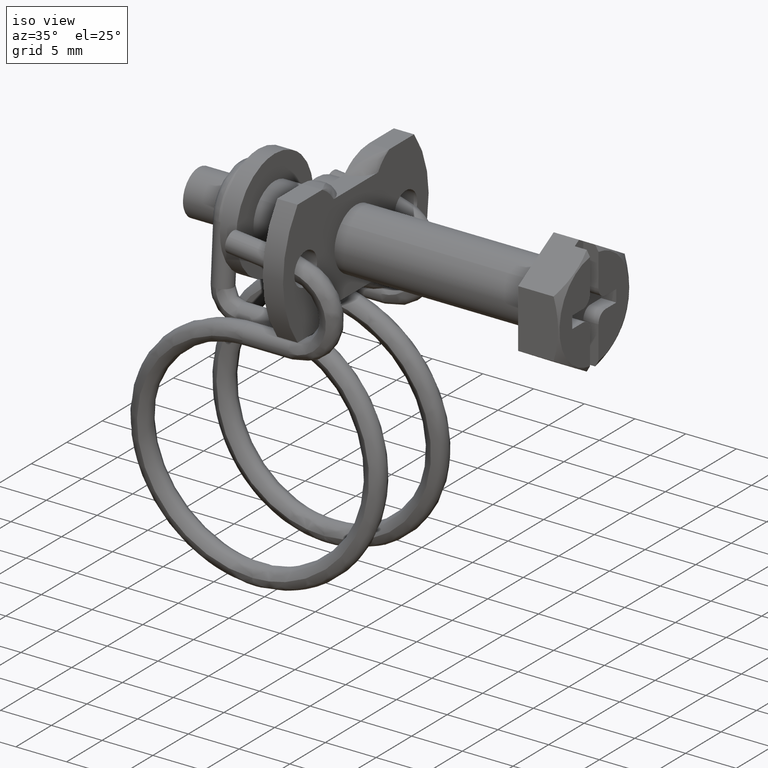
[diagram: clean part render]
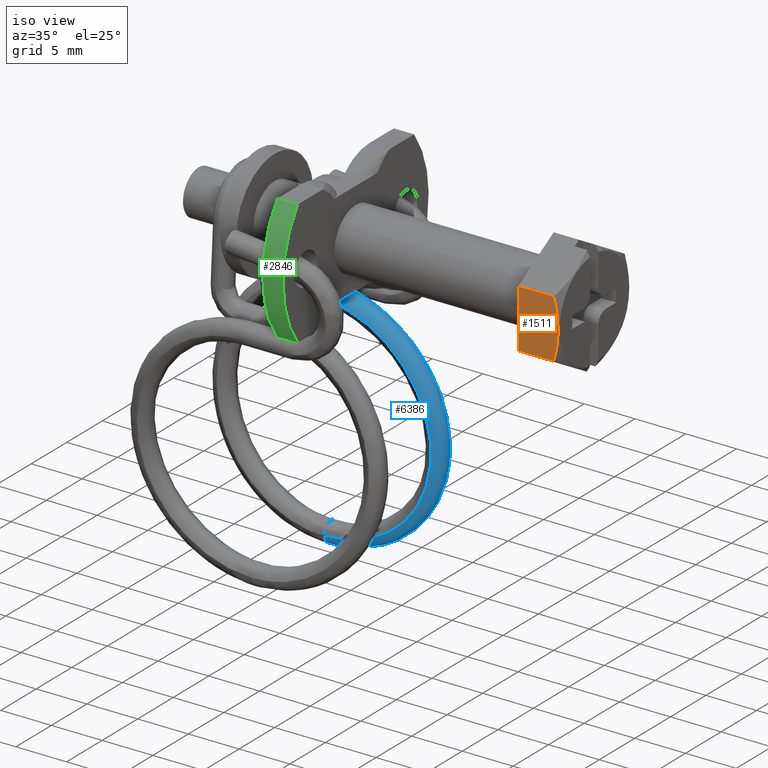
[diagram: same view with three faces highlighted in distinct colors, each labeled with its STEP entity id]
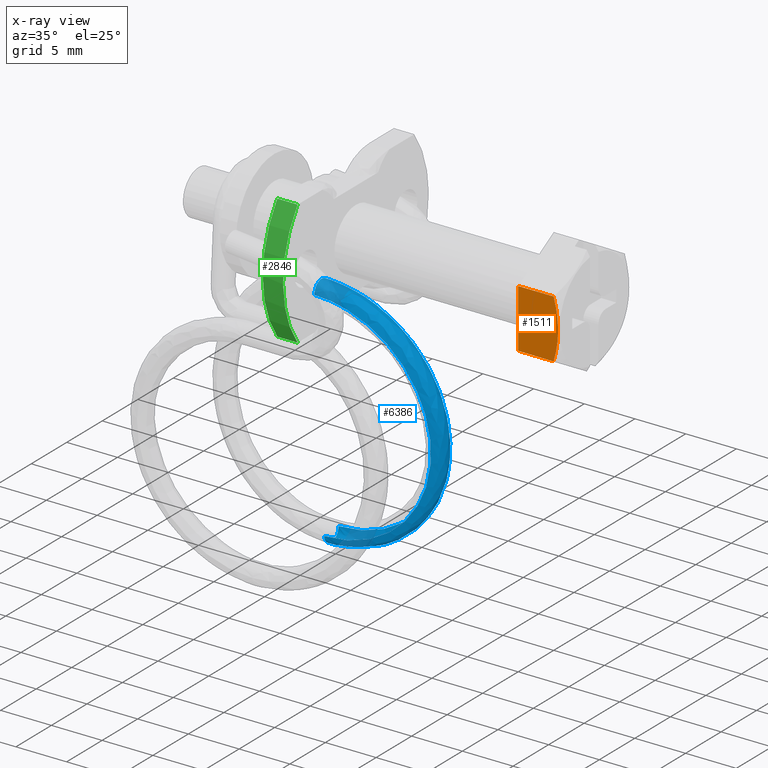
[diagram: x-ray of the same camera — body ghosted, the three highlighted faces saturated]
A machine part, iso view with three faces highlighted in distinct colors.
The next image is the same camera in x-ray (body ghosted, the three faces saturated) — at least one of them is partly hidden behind the body in this view.
Their STEP definitions:

[orange] entity #1511 — the highlighted face is a freeform B-spline surface patch.
#1353=CARTESIAN_POINT('',(3.495682214077680,-4.999999666913359,2.886750192307645));
#1354=VERTEX_POINT('',#1353);
#1372=CARTESIAN_POINT('',(3.495681525698545,-5.0,-2.886752000000000));
#1373=VERTEX_POINT('',#1372);
#1374=CARTESIAN_POINT('',(3.495681525698561,-5.0,-2.886752000000006));
#1375=CARTESIAN_POINT('',(3.529595978997481,-4.999999999999999,-2.769268907514330));
#1376=CARTESIAN_POINT('',(3.562116847349381,-5.0,-2.651240039271775));
#1377=CARTESIAN_POINT('',(3.624020580807399,-5.0,-2.413953352875707));
#1378=CARTESIAN_POINT('',(3.653429100294320,-5.0,-2.294582414753852));
#1379=CARTESIAN_POINT('',(3.736196829382978,-5.0,-1.935162553025155));
#1380=CARTESIAN_POINT('',(3.783840143937273,-5.0,-1.694933598684731));
#1381=CARTESIAN_POINT('',(3.861528393744251,-5.000000000000001,-1.213037692976769));
#1382=CARTESIAN_POINT('',(3.891556436807131,-4.999999999999999,-0.971369361316291));
#1383=CARTESIAN_POINT('',(3.931945220874010,-4.999999999999999,-0.486425645356718));
#1384=CARTESIAN_POINT('',(3.942291136280538,-5.0,-0.243149049629871));
#1385=CARTESIAN_POINT('',(3.942236157695507,-5.0,0.245099403059260));
#1386=CARTESIAN_POINT('',(3.931828426161373,-5.000000000000001,0.490100652901158));
#1387=CARTESIAN_POINT('',(3.890504368289995,-5.000000000000001,0.981663246211075));
#1388=CARTESIAN_POINT('',(3.859912665961563,-5.000000000000001,1.224798511220037));
#1389=CARTESIAN_POINT('',(3.742559517215290,-5.0,1.947388341082182));
#1390=CARTESIAN_POINT('',(3.630399590353678,-4.999999999999999,2.420074789769169));
#1391=CARTESIAN_POINT('',(3.495682059430621,-5.0,2.886750151097730));
#1392=B_SPLINE_CURVE_WITH_KNOTS('',3,(#1374,#1375,#1376,#1377,#1378,#1379,#1380,#1381,#1382,#1383,#1384,#1385,#1386,#1387,#1388,#1389,#1390,#1391),.UNSPECIFIED.,.F.,.U.,(4,2,2,2,2,2,2,2,4),(0.0,0.062500000000000,0.125000000000000,0.250000000000000,0.375000000000000,0.500000000000000,0.625000000000000,0.750000000000000,1.0),.UNSPECIFIED.);
#1393=EDGE_CURVE('',#1373,#1354,#1392,.T.);
#1444=CARTESIAN_POINT('',(0.0,-5.0,-2.886752000000000));
#1445=VERTEX_POINT('',#1444);
#1451=CARTESIAN_POINT('',(0.0,-5.0,2.886751000000000));
#1452=VERTEX_POINT('',#1451);
#1453=CARTESIAN_POINT('',(0.0,-5.0,-2.886752000000000));
#1454=CARTESIAN_POINT('',(0.0,-5.0,2.886751000000000));
#1455=QUASI_UNIFORM_CURVE('',1,(#1453,#1454),.UNSPECIFIED.,.F.,.U.);
#1456=EDGE_CURVE('',#1445,#1452,#1455,.T.);
#1488=CARTESIAN_POINT('',(0.0,-5.0,2.886751000000000));
#1489=CARTESIAN_POINT('',(3.495682214077680,-4.999999666913359,2.886750192307645));
#1490=QUASI_UNIFORM_CURVE('',1,(#1488,#1489),.UNSPECIFIED.,.F.,.U.);
#1491=EDGE_CURVE('',#1452,#1354,#1490,.T.);
#1496=CARTESIAN_POINT('',(-0.196916064255165,-5.0,-3.175138463659831));
#1497=CARTESIAN_POINT('',(-0.196916064255165,-5.0,3.175137618517248));
#1498=CARTESIAN_POINT('',(4.139179871617277,-5.0,-3.175138463659831));
#1499=CARTESIAN_POINT('',(4.139179871617277,-5.0,3.175137618517248));
#1500=B_SPLINE_SURFACE_WITH_KNOTS('',1,1,((#1496,#1498),(#1497,#1499)),.UNSPECIFIED.,.F.,.F.,.U.,(2,2),(2,2),(0.0,6.350276082177080),(0.0,4.336095935872442),.UNSPECIFIED.);
#1501=CARTESIAN_POINT('',(0.0,-5.0,-2.886752000000000));
#1502=CARTESIAN_POINT('',(3.495681525698545,-5.0,-2.886752000000000));
#1503=QUASI_UNIFORM_CURVE('',1,(#1501,#1502),.UNSPECIFIED.,.F.,.U.);
#1504=EDGE_CURVE('',#1445,#1373,#1503,.T.);
#1505=ORIENTED_EDGE('',*,*,#1504,.T.);
#1506=ORIENTED_EDGE('',*,*,#1393,.T.);
#1507=ORIENTED_EDGE('',*,*,#1491,.F.);
#1508=ORIENTED_EDGE('',*,*,#1456,.F.);
#1509=EDGE_LOOP('',(#1505,#1506,#1507,#1508));
#1510=FACE_OUTER_BOUND('',#1509,.T.);
#1511=ADVANCED_FACE('',(#1510),#1500,.F.);

[blue] entity #6386 — the highlighted face is a freeform B-spline surface patch.
#5854=CARTESIAN_POINT('',(-25.454066662369350,3.556007760915047,-6.594689916513559));
#5855=VERTEX_POINT('',#5854);
#5861=CARTESIAN_POINT('',(-25.454066662369350,4.677078109301160,-7.524859682570870));
#5862=VERTEX_POINT('',#5861);
#5863=CARTESIAN_POINT('',(-25.454066662369350,3.556007760915047,-6.594689916513559));
#5864=CARTESIAN_POINT('',(-25.454066662369350,3.576203292679349,-6.592138758728631));
#5865=CARTESIAN_POINT('',(-25.454066662369350,3.596482782676217,-6.590221699142242));
#5866=CARTESIAN_POINT('',(-25.454066662369350,3.878105748847716,-6.572677141437246));
#5867=CARTESIAN_POINT('',(-25.454066662369350,4.144493303892501,-6.664065722882343));
#5868=CARTESIAN_POINT('',(-25.454066662369350,4.537046268533285,-7.010575230649071));
#5869=CARTESIAN_POINT('',(-25.454066662369350,4.660794402641165,-7.263562409387634));
#5870=CARTESIAN_POINT('',(-25.454066662369350,4.677078109301160,-7.524859682570870));
#5871=B_SPLINE_CURVE_WITH_KNOTS('',3,(#5863,#5864,#5865,#5866,#5867,#5868,#5869,#5870),.UNSPECIFIED.,.F.,.U.,(4,2,2,4),(0.240274424987491,0.250000000000000,0.375000000000000,0.500000000000000),.UNSPECIFIED.);
#5872=EDGE_CURVE('',#5855,#5862,#5871,.T.);
#5915=CARTESIAN_POINT('',(-25.454066662369350,2.680950310030905,-7.649253448413409));
#5916=VERTEX_POINT('',#5915);
#5928=CARTESIAN_POINT('',(-25.454066662369350,2.680950310030905,-7.649253448413409));
#5929=CARTESIAN_POINT('',(-25.454066662369350,2.664666525247172,-7.387955556876181));
#5930=CARTESIAN_POINT('',(-25.454066662369350,2.756047187212019,-7.121561462255011));
#5931=CARTESIAN_POINT('',(-25.454066662369350,3.089061552619214,-6.744267220402887));
#5932=CARTESIAN_POINT('',(-25.454066662369350,3.316637149148304,-6.624937386646455));
#5933=CARTESIAN_POINT('',(-25.454066662369350,3.556007760915047,-6.594689916513559));
#5934=B_SPLINE_CURVE_WITH_KNOTS('',3,(#5928,#5929,#5930,#5931,#5932,#5933),.UNSPECIFIED.,.F.,.U.,(4,2,4),(0.0,0.125000000000000,0.240274424987491),.UNSPECIFIED.);
#5935=EDGE_CURVE('',#5916,#5855,#5934,.T.);
#6122=CARTESIAN_POINT('',(-25.454066662369350,6.048063899664025,-29.524859682579802));
#6123=VERTEX_POINT('',#6122);
#6124=CARTESIAN_POINT('',(-25.454066662369350,6.048063899664025,-29.524859682579802));
#6125=CARTESIAN_POINT('',(-24.014030759647898,6.048063899664025,-29.524859682579802));
#6126=CARTESIAN_POINT('',(-22.575094518501729,6.030225047930645,-29.238602348218748));
#6127=CARTESIAN_POINT('',(-19.914814843740949,5.961563619242538,-28.136802868033019));
#6128=CARTESIAN_POINT('',(-18.694749963682820,5.910768035226240,-27.321693874034619));
#6129=CARTESIAN_POINT('',(-16.658548791827702,5.783901700990319,-25.285889146654920));
#6130=CARTESIAN_POINT('',(-15.843210577480530,5.707880694876096,-24.065991649333579));
#6131=CARTESIAN_POINT('',(-14.740902121487480,5.542114776061794,-21.405971217618781));
#6132=CARTESIAN_POINT('',(-14.454364794431079,5.452434830115087,-19.966890794814670));
#6133=CARTESIAN_POINT('',(-14.453769001218051,5.272990846516227,-17.087380542473650));
#6134=CARTESIAN_POINT('',(-14.739712652736170,5.183297171065840,-15.648079804413729));
#6135=CARTESIAN_POINT('',(-15.841134148093330,5.017482773434540,-12.987281440518201));
#6136=CARTESIAN_POINT('',(-16.656182680320828,4.941427161000074,-11.766828620862469));
#6137=CARTESIAN_POINT('',(-18.692288258805149,4.814488013087150,-9.729855463477581));
#6138=CARTESIAN_POINT('',(-19.912549093228399,4.763654468655587,-8.914137324512906));
#6139=CARTESIAN_POINT('',(-22.573680556460729,4.694935879220635,-7.811420594502300));
#6140=CARTESIAN_POINT('',(-24.013271547903152,4.677078109301160,-7.524859682570870));
#6141=CARTESIAN_POINT('',(-25.454066662369350,4.677078109301160,-7.524859682570870));
#6142=B_SPLINE_CURVE_WITH_KNOTS('',3,(#6124,#6125,#6126,#6127,#6128,#6129,#6130,#6131,#6132,#6133,#6134,#6135,#6136,#6137,#6138,#6139,#6140,#6141),.UNSPECIFIED.,.F.,.U.,(4,2,2,2,2,2,2,2,4),(0.263357151825487,0.283417392540081,0.303477633254675,0.323537873969269,0.343598114683864,0.363658355398458,0.383718596113053,0.403778836827647,0.423839077542242),.UNSPECIFIED.);
#6143=EDGE_CURVE('',#6123,#5862,#6142,.T.);
#6145=CARTESIAN_POINT('',(-25.454066662369350,4.051936100389979,-29.649253448422350));
#6146=VERTEX_POINT('',#6145);
#6160=CARTESIAN_POINT('',(-25.454066662369350,4.051936100389979,-29.649253448422350));
#6161=CARTESIAN_POINT('',(-24.014030759647898,4.051936100389979,-29.649253448422350));
#6162=CARTESIAN_POINT('',(-22.575094518501729,4.034097248656019,-29.362996114061279));
#6163=CARTESIAN_POINT('',(-19.914814843740949,3.965435819969357,-28.261196633875549));
#6164=CARTESIAN_POINT('',(-18.694749963682820,3.914640235952412,-27.446087639877149));
#6165=CARTESIAN_POINT('',(-16.658548791827702,3.787773901717160,-25.410282912497479));
#6166=CARTESIAN_POINT('',(-15.843210577480530,3.711752895602520,-24.190385415176081));
#6167=CARTESIAN_POINT('',(-14.740902121487480,3.545986976789617,-21.530364983461300));
#6168=CARTESIAN_POINT('',(-14.454364794431079,3.456307030841749,-20.091284560659702));
#6169=CARTESIAN_POINT('',(-14.453769001218051,3.276863047245261,-17.211774308313679));
#6170=CARTESIAN_POINT('',(-14.739712652736170,3.187169371794342,-15.772473570257519));
#6171=CARTESIAN_POINT('',(-15.841134148093330,3.021354974163187,-13.111675206359489));
#6172=CARTESIAN_POINT('',(-16.656182680320828,2.945299361728930,-11.891222386705010));
#6173=CARTESIAN_POINT('',(-18.692288258805149,2.818360213816672,-9.854249229320114));
#6174=CARTESIAN_POINT('',(-19.912549093228399,2.767526669385402,-9.038531090355445));
#6175=CARTESIAN_POINT('',(-22.573680556460719,2.698808079950021,-7.935814360344840));
#6176=CARTESIAN_POINT('',(-24.013271547903152,2.680950310030905,-7.649253448413409));
#6177=CARTESIAN_POINT('',(-25.454066662369350,2.680950310030905,-7.649253448413409));
#6178=B_SPLINE_CURVE_WITH_KNOTS('',3,(#6160,#6161,#6162,#6163,#6164,#6165,#6166,#6167,#6168,#6169,#6170,#6171,#6172,#6173,#6174,#6175,#6176,#6177),.UNSPECIFIED.,.F.,.U.,(4,2,2,2,2,2,2,2,4),(0.263357151825487,0.283417392540081,0.303477633254675,0.323537873969269,0.343598114683864,0.363658355398458,0.383718596113053,0.403778836827647,0.423839077542242),.UNSPECIFIED.);
#6179=EDGE_CURVE('',#6146,#5916,#6178,.T.);
#6186=CARTESIAN_POINT('',(-25.798686228397219,4.049982008011611,-29.617896425765139));
#6187=CARTESIAN_POINT('',(-25.799015872958069,4.050715914529832,-29.628342382156141));
#6188=CARTESIAN_POINT('',(-25.807589207672699,4.063272588756894,-29.900425855015602));
#6189=CARTESIAN_POINT('',(-25.816107696279989,4.191966348274068,-30.163526348183339));
#6190=CARTESIAN_POINT('',(-25.827763055725409,4.584517692092919,-30.510021971378851));
#6191=CARTESIAN_POINT('',(-25.831155810027859,4.850904365045050,-30.601403571007999));
#6192=CARTESIAN_POINT('',(-25.831155810027859,5.373489400862869,-30.568837359264400));
#6193=CARTESIAN_POINT('',(-25.827763055725409,5.626469772498510,-30.445090085175700));
#6194=CARTESIAN_POINT('',(-25.816107696279989,5.972965538240923,-30.052538867179639));
#6195=CARTESIAN_POINT('',(-25.807589207672699,6.067998910103152,-29.775496250464730));
#6196=CARTESIAN_POINT('',(-25.799015872958080,6.046678474989826,-29.503958913589180));
#6197=CARTESIAN_POINT('',(-25.798686228397219,6.046109807281872,-29.493502659922729));
#6198=CARTESIAN_POINT('',(-25.683813039721262,4.049982008011611,-29.617896425765139));
#6199=CARTESIAN_POINT('',(-25.684032802761831,4.050715914529832,-29.628342382156141));
#6200=CARTESIAN_POINT('',(-25.689748359238251,4.063272588756894,-29.900425855015602));
#6201=CARTESIAN_POINT('',(-25.695427351643101,4.191966348274068,-30.163526348183339));
#6202=CARTESIAN_POINT('',(-25.703197591273391,4.584517692092919,-30.510021971378851));
#6203=CARTESIAN_POINT('',(-25.705459427475020,4.850904365045050,-30.601403571007999));
#6204=CARTESIAN_POINT('',(-25.705459427475020,5.373489400862869,-30.568837359264400));
#6205=CARTESIAN_POINT('',(-25.703197591273391,5.626469772498510,-30.445090085175700));
#6206=CARTESIAN_POINT('',(-25.695427351643101,5.972965538240923,-30.052538867179639));
#6207=CARTESIAN_POINT('',(-25.689748359238241,6.067998910103152,-29.775496250464730));
#6208=CARTESIAN_POINT('',(-25.684032802761831,6.046678474989826,-29.503958913589180));
#6209=CARTESIAN_POINT('',(-25.683813039721262,6.046109807281872,-29.493502659922729));
#6210=CARTESIAN_POINT('',(-25.568939851045300,4.049982008011611,-29.617896425765139));
#6211=CARTESIAN_POINT('',(-25.569049732565588,4.050715914529832,-29.628342382156141));
#6212=CARTESIAN_POINT('',(-25.571907510803801,4.063272588756894,-29.900425855015602));
#6213=CARTESIAN_POINT('',(-25.574747007006231,4.191966348274068,-30.163526348183339));
#6214=CARTESIAN_POINT('',(-25.578632126821368,4.584517692092919,-30.510021971378851));
#6215=CARTESIAN_POINT('',(-25.579763044922188,4.850904365045050,-30.601403571007999));
#6216=CARTESIAN_POINT('',(-25.579763044922188,5.373489400862869,-30.568837359264400));
#6217=CARTESIAN_POINT('',(-25.578632126821368,5.626469772498510,-30.445090085175700));
#6218=CARTESIAN_POINT('',(-25.574747007006231,5.972965538240923,-30.052538867179639));
#6219=CARTESIAN_POINT('',(-25.571907510803801,6.067998910103152,-29.775496250464730));
#6220=CARTESIAN_POINT('',(-25.569049732565588,6.046678474989826,-29.503958913589180));
#6221=CARTESIAN_POINT('',(-25.568939851045300,6.046109807281872,-29.493502659922729));
#6222=CARTESIAN_POINT('',(-24.018280056985869,4.049983061964736,-29.617913338430458));
#6223=CARTESIAN_POINT('',(-24.016906674251022,4.050716970120867,-29.628359321104622));
#6224=CARTESIAN_POINT('',(-23.981187990325392,4.063273686946431,-29.900443477531589));
#6225=CARTESIAN_POINT('',(-23.945697809172302,4.191967488788994,-30.163544649895378));
#6226=CARTESIAN_POINT('',(-23.897138629585669,4.584518890519945,-30.510041202394628));
#6227=CARTESIAN_POINT('',(-23.883003555824860,4.850905580329773,-30.601423072534260));
#6228=CARTESIAN_POINT('',(-23.883003555824860,5.373490616147642,-30.568856860790660));
#6229=CARTESIAN_POINT('',(-23.897138629585669,5.626470970925595,-30.445109316191491));
#6230=CARTESIAN_POINT('',(-23.945697809172302,5.972966678756134,-30.052557168891671));
#6231=CARTESIAN_POINT('',(-23.981187990325381,6.068000008293010,-29.775513872980621));
#6232=CARTESIAN_POINT('',(-24.016906674251022,6.046679530581124,-29.503975852537678));
#6233=CARTESIAN_POINT('',(-24.018280056985851,6.046110861235258,-29.493519572588070));
#6234=CARTESIAN_POINT('',(-21.147873170083908,4.014401172492754,-29.046936182060151));
#6235=CARTESIAN_POINT('',(-21.143754256373992,4.015101028941960,-29.056835742183960));
#6236=CARTESIAN_POINT('',(-21.036630311104130,4.026772135277390,-29.314708642076081));
#6237=CARTESIAN_POINT('',(-20.930191668755281,4.154585992137944,-29.563689471427679));
#6238=CARTESIAN_POINT('',(-20.784557778459199,4.545933415611630,-29.890865968357421));
#6239=CARTESIAN_POINT('',(-20.742165262790760,4.811969639832275,-29.976623970613989));
#6240=CARTESIAN_POINT('',(-20.742165262790760,5.334554675649825,-29.944057758870390));
#6241=CARTESIAN_POINT('',(-20.784557778459199,5.587885496016899,-29.825934082154252));
#6242=CARTESIAN_POINT('',(-20.930191668755281,5.935585182104626,-29.452701990423929));
#6243=CARTESIAN_POINT('',(-21.036630311104119,6.031498456623290,-29.189779037525629));
#6244=CARTESIAN_POINT('',(-21.143754256373949,6.011063589401890,-28.932452273616949));
#6245=CARTESIAN_POINT('',(-21.147873170083859,6.010528971762962,-28.922542416217649));
#6246=CARTESIAN_POINT('',(-17.497049320666100,3.862404627799372,-26.607870797941601));
#6247=CARTESIAN_POINT('',(-17.489444778889030,3.862959296410751,-26.615440550962528));
#6248=CARTESIAN_POINT('',(-17.291667264112199,3.870854384337437,-26.812720259018850));
#6249=CARTESIAN_POINT('',(-17.095154989409551,3.994916379072377,-27.001495528744080));
#6250=CARTESIAN_POINT('',(-16.826278513496892,4.381130344761996,-27.246296211096759));
#6251=CARTESIAN_POINT('',(-16.748011358820300,4.645672272640718,-27.308075467725619));
#6252=CARTESIAN_POINT('',(-16.748011358820300,5.168257308458555,-27.275509255982019));
#6253=CARTESIAN_POINT('',(-16.826278513496892,5.423082425167375,-27.181364324893789));
#6254=CARTESIAN_POINT('',(-17.095154989409551,5.775915569039280,-26.890508047740500));
#6255=CARTESIAN_POINT('',(-17.291667264112160,5.875580705683760,-26.687790654467719));
#6256=CARTESIAN_POINT('',(-17.489444778888959,5.858921856870755,-26.491057082395759));
#6257=CARTESIAN_POINT('',(-17.497049320665990,5.858532427069638,-26.483477032099390));
#6258=CARTESIAN_POINT('',(-15.057283814116641,3.634937441572986,-22.957739533153951));
#6259=CARTESIAN_POINT('',(-15.047355954688120,3.635275393505971,-22.961831666670669));
#6260=CARTESIAN_POINT('',(-14.789154024527820,3.637534154179764,-23.068666090442690));
#6261=CARTESIAN_POINT('',(-14.532603886938160,3.755995878881054,-23.167574680575949));
#6262=CARTESIAN_POINT('',(-14.181581046277890,4.134547316246602,-23.289415938907780));
#6263=CARTESIAN_POINT('',(-14.079401936443020,4.396858761568448,-23.315402981932909));
#6264=CARTESIAN_POINT('',(-14.079401936443020,4.919443797386390,-23.282836770189320));
#6265=CARTESIAN_POINT('',(-14.181581046277890,5.176499396652663,-23.224484052703890));
#6266=CARTESIAN_POINT('',(-14.532603886938160,5.536995068847967,-23.056587199571489));
#6267=CARTESIAN_POINT('',(-14.789154024527781,5.642260475526436,-22.943736485890781));
#6268=CARTESIAN_POINT('',(-15.047355954688040,5.631237953966011,-22.837448198102699));
#6269=CARTESIAN_POINT('',(-15.057283814116500,5.631065240843279,-22.833345767310512));
#6270=CARTESIAN_POINT('',(-14.200033277851880,3.366591593840451,-18.651634618254199));
#6271=CARTESIAN_POINT('',(-14.189290561518041,3.366674354316760,-18.651631733364091));
#6272=CARTESIAN_POINT('',(-13.909895983811181,3.362296142826702,-18.651963676485590));
#6273=CARTESIAN_POINT('',(-13.632288774181720,3.474163353998082,-18.645051113201049));
#6274=CARTESIAN_POINT('',(-13.252454749430530,3.843691896682151,-18.622103355927869));
#6275=CARTESIAN_POINT('',(-13.141889002592739,4.103376870903079,-18.605943817549271));
#6276=CARTESIAN_POINT('',(-13.141889002592739,4.625961906720936,-18.573377605805639));
#6277=CARTESIAN_POINT('',(-13.252454749430530,4.885643977087811,-18.557171469724562));
#6278=CARTESIAN_POINT('',(-13.632288774181720,5.255162543964997,-18.534063632197359));
#6279=CARTESIAN_POINT('',(-13.909895983811129,5.367022464172881,-18.527034071935361));
#6280=CARTESIAN_POINT('',(-14.189290561517950,5.362636914776896,-18.527248264797219));
#6281=CARTESIAN_POINT('',(-14.200033277851730,5.362719393110856,-18.527240852411811));
#6282=CARTESIAN_POINT('',(-15.055522261140890,3.098204727275876,-14.344871480410820));
#6283=CARTESIAN_POINT('',(-15.045592726368680,3.098032257432753,-14.340772953489310));
#6284=CARTESIAN_POINT('',(-14.787347224179941,3.087016063043370,-14.234586196847690));
#6285=CARTESIAN_POINT('',(-14.530753793303139,3.192287756415709,-14.121836364789401));
#6286=CARTESIAN_POINT('',(-14.179671716924430,3.552792030334333,-13.954077542195350));
#6287=CARTESIAN_POINT('',(-14.077475364183620,3.809850133472528,-13.895765003969499));
#6288=CARTESIAN_POINT('',(-14.077475364183620,4.332435169290209,-13.863198792225869));
#6289=CARTESIAN_POINT('',(-14.179671716924430,4.594744110739937,-13.889145655993779));
#6290=CARTESIAN_POINT('',(-14.530753793303139,4.973286946382379,-14.010848883786471));
#6291=CARTESIAN_POINT('',(-14.787347224179889,5.091742384389372,-14.109656592297190));
#6292=CARTESIAN_POINT('',(-15.045592726368589,5.093994817892373,-14.216389484923029));
#6293=CARTESIAN_POINT('',(-15.055522261140741,5.094332526545757,-14.220477714569061));
#6294=CARTESIAN_POINT('',(-17.494402942653061,2.870633314466694,-10.693067707508851));
#6295=CARTESIAN_POINT('',(-17.486795877539919,2.870244029282462,-10.685489977857451));
#6296=CARTESIAN_POINT('',(-17.288952736305571,2.853588941638670,-10.488816760690989));
#6297=CARTESIAN_POINT('',(-17.092375254978339,2.953257815390636,-10.286159336216411));
#6298=CARTESIAN_POINT('',(-16.823409560578789,3.306096072532608,-9.995385110930442));
#6299=CARTESIAN_POINT('',(-16.745116435325869,3.560922677661699,-9.901264064290032));
#6300=CARTESIAN_POINT('',(-16.745116435325869,4.083507713479529,-9.868697852546436));
#6301=CARTESIAN_POINT('',(-16.823409560578789,4.348048152938333,-9.930453224727208));
#6302=CARTESIAN_POINT('',(-17.092375254978339,4.734257005357617,-10.175171855212531));
#6303=CARTESIAN_POINT('',(-17.288952736305529,4.858315262985138,-10.363887156139761));
#6304=CARTESIAN_POINT('',(-17.486795877539851,4.866206589742566,-10.561106509289990));
#6305=CARTESIAN_POINT('',(-17.494402942652972,4.866761113737056,-10.568673941665850));
#6306=CARTESIAN_POINT('',(-21.145812917994959,2.718522525102673,-8.252169056707519));
#6307=CARTESIAN_POINT('',(-21.141692031495630,2.717987943229627,-8.242259773238216));
#6308=CARTESIAN_POINT('',(-21.034516778284321,2.697554006200594,-7.984947935995488));
#6309=CARTESIAN_POINT('',(-20.928027156225891,2.793468204962236,-7.722039814270973));
#6310=CARTESIAN_POINT('',(-20.782323513316410,3.141169155637537,-7.348828015187094));
#6311=CARTESIAN_POINT('',(-20.739910693386449,3.394500344112876,-7.230710245449926));
#6312=CARTESIAN_POINT('',(-20.739910693386449,3.917085379930778,-7.198144033706322));
#6313=CARTESIAN_POINT('',(-20.782323513316410,4.183121236042620,-7.283896128982965));
#6314=CARTESIAN_POINT('',(-20.928027156225891,4.574467394928841,-7.611052333267274));
#6315=CARTESIAN_POINT('',(-21.034516778284299,4.702280327546379,-7.860018331444874));
#6316=CARTESIAN_POINT('',(-21.141692031495602,4.713950503689492,-8.117876304671411));
#6317=CARTESIAN_POINT('',(-21.145812917994899,4.714650324372813,-8.127775290865181));
#6318=CARTESIAN_POINT('',(-24.017522509802561,2.682903436638194,-7.680594973373307));
#6319=CARTESIAN_POINT('',(-24.016148402887520,2.682334767360364,-7.670138694515192));
#6320=CARTESIAN_POINT('',(-23.980410884617559,2.661014291418046,-7.398600702460791));
#6321=CARTESIAN_POINT('',(-23.944901989607150,2.756047622712242,-7.121557434757744));
#6322=CARTESIAN_POINT('',(-23.896317204924920,3.102543332947758,-6.729005326052181));
#6323=CARTESIAN_POINT('',(-23.882174677786590,3.355523688426035,-6.605257792687459));
#6324=CARTESIAN_POINT('',(-23.882174677786590,3.878108724243962,-6.572691580943856));
#6325=CARTESIAN_POINT('',(-23.896317204924920,4.144495413353569,-6.664073439849250));
#6326=CARTESIAN_POINT('',(-23.944901989607150,4.537046812679269,-7.010569953754025));
#6327=CARTESIAN_POINT('',(-23.980410884617552,4.665740612764521,-7.273671097909762));
#6328=CARTESIAN_POINT('',(-24.016148402887520,4.678297327820498,-7.545755225947988));
#6329=CARTESIAN_POINT('',(-24.017522509802539,4.679031235908585,-7.556201207530561));
#6330=CARTESIAN_POINT('',(-25.569000414153091,2.682904402416857,-7.680610471070623));
#6331=CARTESIAN_POINT('',(-25.569110353610458,2.682335734708901,-7.670154217404122));
#6332=CARTESIAN_POINT('',(-25.571969638665490,2.661015299595550,-7.398616880528521));
#6333=CARTESIAN_POINT('',(-25.574810632045718,2.756048671457803,-7.121574263813597));
#6334=CARTESIAN_POINT('',(-25.578697800362750,3.102544437200215,-6.729023045817519));
#6335=CARTESIAN_POINT('',(-25.579829314761060,3.355524808835855,-6.605275771728810));
#6336=CARTESIAN_POINT('',(-25.579829314761060,3.878109844653675,-6.572709559985210));
#6337=CARTESIAN_POINT('',(-25.578697800362750,4.144496517605799,-6.664091159614390));
#6338=CARTESIAN_POINT('',(-25.574810632045718,4.537047861424653,-7.010586782809877));
#6339=CARTESIAN_POINT('',(-25.571969638665490,4.665741620941809,-7.273687275977561));
#6340=CARTESIAN_POINT('',(-25.569110353610458,4.678298295168886,-7.545770748836985));
#6341=CARTESIAN_POINT('',(-25.569000414153091,4.679032201687103,-7.556216705227944));
#6342=CARTESIAN_POINT('',(-25.683934165936840,2.682904402416857,-7.680610471070623));
#6343=CARTESIAN_POINT('',(-25.684154044851560,2.682335734708901,-7.670154217404122));
#6344=CARTESIAN_POINT('',(-25.689872614961629,2.661015299595550,-7.398616880528521));
#6345=CARTESIAN_POINT('',(-25.695554601722080,2.756048671457803,-7.121574263813597));
#6346=CARTESIAN_POINT('',(-25.703328938356151,3.102544437200215,-6.729023045817519));
#6347=CARTESIAN_POINT('',(-25.705591967152770,3.355524808835855,-6.605275771728810));
#6348=CARTESIAN_POINT('',(-25.705591967152770,3.878109844653675,-6.572709559985210));
#6349=CARTESIAN_POINT('',(-25.703328938356151,4.144496517605799,-6.664091159614390));
#6350=CARTESIAN_POINT('',(-25.695554601722080,4.537047861424653,-7.010586782809877));
#6351=CARTESIAN_POINT('',(-25.689872614961629,4.665741620941809,-7.273687275977561));
#6352=CARTESIAN_POINT('',(-25.684154044851571,4.678298295168886,-7.545770748836985));
#6353=CARTESIAN_POINT('',(-25.683934165936840,4.679032201687103,-7.556216705227944));
#6354=CARTESIAN_POINT('',(-25.798867917720582,2.682904402416857,-7.680610471070623));
#6355=CARTESIAN_POINT('',(-25.799197736092669,2.682335734708901,-7.670154217404122));
#6356=CARTESIAN_POINT('',(-25.807775591257769,2.661015299595550,-7.398616880528521));
#6357=CARTESIAN_POINT('',(-25.816298571398448,2.756048671457803,-7.121574263813597));
#6358=CARTESIAN_POINT('',(-25.827960076349559,3.102544437200215,-6.729023045817519));
#6359=CARTESIAN_POINT('',(-25.831354619544481,3.355524808835855,-6.605275771728810));
#6360=CARTESIAN_POINT('',(-25.831354619544481,3.878109844653675,-6.572709559985210));
#6361=CARTESIAN_POINT('',(-25.827960076349559,4.144496517605799,-6.664091159614390));
#6362=CARTESIAN_POINT('',(-25.816298571398448,4.537047861424653,-7.010586782809877));
#6363=CARTESIAN_POINT('',(-25.807775591257769,4.665741620941809,-7.273687275977561));
#6364=CARTESIAN_POINT('',(-25.799197736092680,4.678298295168886,-7.545770748836985));
#6365=CARTESIAN_POINT('',(-25.798867917720582,4.679032201687103,-7.556216705227944));
#6366=B_SPLINE_SURFACE_WITH_KNOTS('',3,3,((#6186,#6198,#6210,#6222,#6234,#6246,#6258,#6270,#6282,#6294,#6306,#6318,#6330,#6342,#6354),(#6187,#6199,#6211,#6223,#6235,#6247,#6259,#6271,#6283,#6295,#6307,#6319,#6331,#6343,#6355),(#6188,#6200,#6212,#6224,#6236,#6248,#6260,#6272,#6284,#6296,#6308,#6320,#6332,#6344,#6356),(#6189,#6201,#6213,#6225,#6237,#6249,#6261,#6273,#6285,#6297,#6309,#6321,#6333,#6345,#6357),(#6190,#6202,#6214,#6226,#6238,#6250,#6262,#6274,#6286,#6298,#6310,#6322,#6334,#6346,#6358),(#6191,#6203,#6215,#6227,#6239,#6251,#6263,#6275,#6287,#6299,#6311,#6323,#6335,#6347,#6359),(#6192,#6204,#6216,#6228,#6240,#6252,#6264,#6276,#6288,#6300,#6312,#6324,#6336,#6348,#6360),(#6193,#6205,#6217,#6229,#6241,#6253,#6265,#6277,#6289,#6301,#6313,#6325,#6337,#6349,#6361),(#6194,#6206,#6218,#6230,#6242,#6254,#6266,#6278,#6290,#6302,#6314,#6326,#6338,#6350,#6362),(#6195,#6207,#6219,#6231,#6243,#6255,#6267,#6279,#6291,#6303,#6315,#6327,#6339,#6351,#6363),(#6196,#6208,#6220,#6232,#6244,#6256,#6268,#6280,#6292,#6304,#6316,#6328,#6340,#6352,#6364),(#6197,#6209,#6221,#6233,#6245,#6257,#6269,#6281,#6293,#6305,#6317,#6329,#6341,#6353,#6365)),.UNSPECIFIED.,.F.,.F.,.U.,(4,1,2,2,2,1,4),(4,2,1,1,1,1,1,1,1,2,4),(0.0,0.031435337376270,0.817270639166809,1.603105940957347,2.388941242747885,3.174776544538424,3.206211881914552),(0.0,0.376425588206663,5.081745440789835,9.787065293373148,14.492385145956440,19.197704998539749,23.903024851123039,28.608344703706351,33.313664556289638,38.018984408872939,38.395409997079618),.UNSPECIFIED.);
#6367=ORIENTED_EDGE('',*,*,#6143,.T.);
#6368=ORIENTED_EDGE('',*,*,#5872,.F.);
#6369=ORIENTED_EDGE('',*,*,#5935,.F.);
#6370=ORIENTED_EDGE('',*,*,#6179,.F.);
#6371=CARTESIAN_POINT('',(-25.454066662369350,4.051936100389979,-29.649253448422350));
#6372=CARTESIAN_POINT('',(-25.454066662369350,4.068219206261784,-29.910545966331249));
#6373=CARTESIAN_POINT('',(-25.454066662369350,4.191966480350692,-30.163526337966900));
#6374=CARTESIAN_POINT('',(-25.454066662369350,4.584517692086248,-30.510021971378851));
#6375=CARTESIAN_POINT('',(-25.454066662369350,4.850904365038860,-30.601403571007999));
#6376=CARTESIAN_POINT('',(-25.454066662369350,5.373489400857673,-30.568837359264400));
#6377=CARTESIAN_POINT('',(-25.454066662369350,5.626469772493804,-30.445090085175700));
#6378=CARTESIAN_POINT('',(-25.454066662369350,5.972965405906436,-30.052538873440849));
#6379=CARTESIAN_POINT('',(-25.454066662369350,6.064347005535830,-29.786152200488701));
#6380=CARTESIAN_POINT('',(-25.454066662369350,6.048063899664025,-29.524859682579802));
#6381=B_SPLINE_CURVE_WITH_KNOTS('',3,(#6371,#6372,#6373,#6374,#6375,#6376,#6377,#6378,#6379,#6380),.UNSPECIFIED.,.F.,.U.,(4,2,2,2,4),(0.0,0.125000000000000,0.250000000000000,0.375000000000000,0.500000000000000),.UNSPECIFIED.);
#6382=EDGE_CURVE('',#6146,#6123,#6381,.T.);
#6383=ORIENTED_EDGE('',*,*,#6382,.T.);
#6384=EDGE_LOOP('',(#6367,#6368,#6369,#6370,#6383));
#6385=FACE_OUTER_BOUND('',#6384,.T.);
#6386=ADVANCED_FACE('',(#6385),#6366,.T.);

[green] entity #2846 — the highlighted face is a freeform B-spline surface patch.
#2766=CARTESIAN_POINT('',(-19.500000000008750,-8.200000000000150,-6.149999999999800));
#2767=VERTEX_POINT('',#2766);
#2773=CARTESIAN_POINT('',(-21.500000000008750,-8.200000000000150,-6.149999999999800));
#2774=VERTEX_POINT('',#2773);
#2775=CARTESIAN_POINT('',(-21.500000000008750,-8.200000000000150,-6.149999999999800));
#2776=CARTESIAN_POINT('',(-19.500000000008750,-8.200000000000150,-6.149999999999800));
#2777=QUASI_UNIFORM_CURVE('',1,(#2775,#2776),.UNSPECIFIED.,.F.,.U.);
#2778=EDGE_CURVE('',#2774,#2767,#2777,.T.);
#2789=CARTESIAN_POINT('',(-21.550000000008751,-8.007224021571862,-6.398973626165564));
#2790=CARTESIAN_POINT('',(-19.448750000008751,-8.007224021571862,-6.398973626165564));
#2791=CARTESIAN_POINT('',(-21.550000000008751,-13.275345056595944,0.193181266879380));
#2792=CARTESIAN_POINT('',(-19.448750000008751,-13.275345056595944,0.193181266879380));
#2793=CARTESIAN_POINT('',(-21.550000000008751,-7.817638761485574,6.629255176482364));
#2794=CARTESIAN_POINT('',(-19.448750000008747,-7.817638761485574,6.629255176482364));
#2802=(BOUNDED_SURFACE()B_SPLINE_SURFACE(1,2,((#2789,#2791,#2793),(#2790,#2792,#2794)),.UNSPECIFIED.,.F.,.F.,.U.)B_SPLINE_SURFACE_WITH_KNOTS((2,2),(3,3),(0.0,2.101249999999998),(0.0,14.705839359394290),.UNSPECIFIED.)GEOMETRIC_REPRESENTATION_ITEM()RATIONAL_B_SPLINE_SURFACE(((1.0,0.769439146848114,0.993309107093485),(1.0,0.769439146848114,0.993309107093485)))REPRESENTATION_ITEM('')SURFACE());
#2803=CARTESIAN_POINT('',(-19.500000000008750,-8.199999999999900,6.150000000000090));
#2804=VERTEX_POINT('',#2803);
#2805=CARTESIAN_POINT('',(-19.500000000008750,-8.199999999999900,6.150000000000090));
#2806=CARTESIAN_POINT('',(-19.500000000008701,-8.519519087422706,5.724035737760139));
#2807=CARTESIAN_POINT('',(-19.500000000008750,-8.944185841734653,5.054887678176233));
#2808=CARTESIAN_POINT('',(-19.500000000008789,-9.460019654946205,3.986891650782587));
#2809=CARTESIAN_POINT('',(-19.500000000008779,-9.806348757719620,3.050997066197944));
#2810=CARTESIAN_POINT('',(-19.500000000008761,-10.116726922927549,1.816729551643271));
#2811=CARTESIAN_POINT('',(-19.500000000008690,-10.273101906173970,0.499349864317029));
#2812=CARTESIAN_POINT('',(-19.500000000008900,-10.238467308949440,-0.877297987947382));
#2813=CARTESIAN_POINT('',(-19.500000000008470,-10.068112930916589,-2.017408185071375));
#2814=CARTESIAN_POINT('',(-19.500000000009010,-9.751676151692172,-3.249822040443398));
#2815=CARTESIAN_POINT('',(-19.500000000007990,-9.196064782134345,-4.642617416231502));
#2816=CARTESIAN_POINT('',(-19.500000000009649,-8.571067534573148,-5.655340793784334));
#2817=CARTESIAN_POINT('',(-19.500000000008750,-8.200000000000150,-6.149999999999800));
#2818=B_SPLINE_CURVE_WITH_KNOTS('',3,(#2805,#2806,#2807,#2808,#2809,#2810,#2811,#2812,#2813,#2814,#2815,#2816,#2817),.UNSPECIFIED.,.F.,.U.,(4,1,1,1,1,1,1,1,1,1,4),(0.000000013894537,1.597441010061694,2.370398503866449,3.555598912063260,4.586208935844045,6.183652242650881,7.523437617996111,8.708638702730543,9.636187775186805,11.336692995401140,13.191786622319521),.UNSPECIFIED.);
#2819=EDGE_CURVE('',#2804,#2767,#2818,.T.);
#2820=ORIENTED_EDGE('',*,*,#2819,.F.);
#2821=CARTESIAN_POINT('',(-21.500000000008750,-8.199999999999900,6.150000000000090));
#2822=VERTEX_POINT('',#2821);
#2823=CARTESIAN_POINT('',(-21.500000000008750,-8.199999999999900,6.150000000000090));
#2824=CARTESIAN_POINT('',(-19.500000000008750,-8.199999999999900,6.150000000000090));
#2825=QUASI_UNIFORM_CURVE('',1,(#2823,#2824),.UNSPECIFIED.,.F.,.U.);
#2826=EDGE_CURVE('',#2822,#2804,#2825,.T.);
#2827=ORIENTED_EDGE('',*,*,#2826,.F.);
#2828=CARTESIAN_POINT('',(-21.500000000008750,-8.199999999999900,6.150000000000090));
#2829=CARTESIAN_POINT('',(-21.500000000008811,-8.571064882905688,5.655338873568178));
#2830=CARTESIAN_POINT('',(-21.500000000008651,-9.196062119007992,4.642618224085243));
#2831=CARTESIAN_POINT('',(-21.500000000008839,-9.879444100438995,2.929644399065090));
#2832=CARTESIAN_POINT('',(-21.500000000008711,-10.199968886661660,1.357248157361515));
#2833=CARTESIAN_POINT('',(-21.500000000008740,-10.266449746107689,0.034274791697057));
#2834=CARTESIAN_POINT('',(-21.500000000008871,-10.209849401467309,-1.150653744426264));
#2835=CARTESIAN_POINT('',(-21.500000000008232,-10.002193077792359,-2.390866875075449));
#2836=CARTESIAN_POINT('',(-21.500000000009258,-9.617626805480079,-3.605230338131586));
#2837=CARTESIAN_POINT('',(-21.500000000008011,-9.060169788466038,-4.862765342306322));
#2838=CARTESIAN_POINT('',(-21.500000000010392,-8.571073981467691,-5.655343134498530));
#2839=CARTESIAN_POINT('',(-21.500000000008750,-8.200000000000150,-6.149999999999800));
#2840=B_SPLINE_CURVE_WITH_KNOTS('',3,(#2828,#2829,#2830,#2831,#2832,#2833,#2834,#2835,#2836,#2837,#2838,#2839),.UNSPECIFIED.,.F.,.U.,(4,1,1,1,1,1,1,1,1,4),(0.000000013894537,1.855094346048755,3.555598912063260,5.513756750082795,6.647411002232888,7.523437617996111,9.069350162910196,10.409144538888130,11.336692995401140,13.191786622319521),.UNSPECIFIED.);
#2841=EDGE_CURVE('',#2822,#2774,#2840,.T.);
#2842=ORIENTED_EDGE('',*,*,#2841,.T.);
#2843=ORIENTED_EDGE('',*,*,#2778,.T.);
#2844=EDGE_LOOP('',(#2820,#2827,#2842,#2843));
#2845=FACE_OUTER_BOUND('',#2844,.T.);
#2846=ADVANCED_FACE('',(#2845),#2802,.T.);